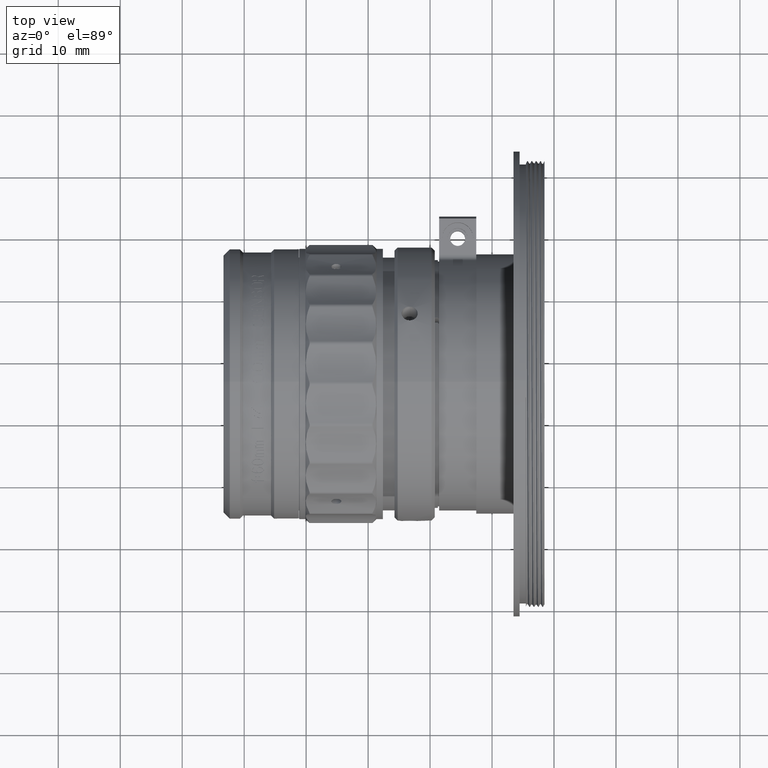
[diagram: clean part render]
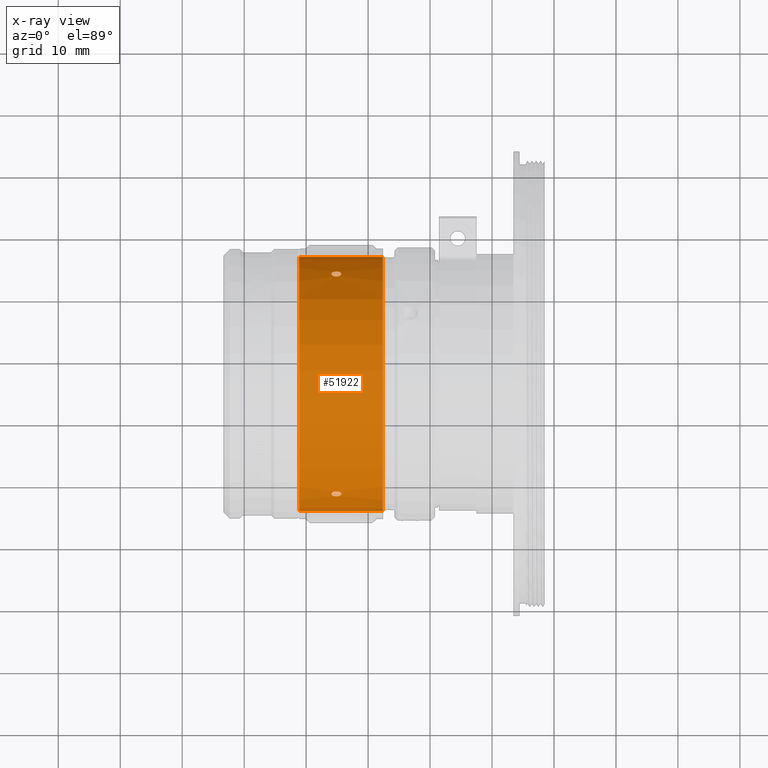
[diagram: x-ray — body ghosted, one internal face saturated and labeled with its STEP entity id]
A machine part, top view, then the same camera in x-ray: the body is ghosted and one INTERNAL B-rep face — a face not visible from any outside direction — is saturated and labeled: STEP entity #51922.
In plain terms, the highlighted cylindrical surface (partial cylindrical patch) has radius 20.5 mm, axis along (1, 0, 0).
Its self-contained STEP definition (entity closure, byte-faithful):
#1580 = DIRECTION ( 'NONE',  ( 0.0000000000000000000, -0.9998476951563911586, -0.01745240643728984339 ) ) ;
#1658 = B_SPLINE_CURVE_WITH_KNOTS ( 'NONE', 3,
 ( #39605, #29747, #54951, #65839, #65510, #2850, #66527, #8978, #19868, #45071, #45414, #60070, #19519, #39273 ),
 .UNSPECIFIED., .F., .F.,
 ( 4, 2, 2, 2, 2, 2, 4 ),
 ( 0.003751869314294635147, 0.004064479787118162497, 0.004377090259941688981, 0.005002311205588750621, 0.005314921678412278840, 0.005627532151235807058, 0.006252753096882871300 ),
 .UNSPECIFIED. ) ;
#2750 = CARTESIAN_POINT ( 'NONE',  ( 13.75000000000000000, 0.0000000000000000000, 0.0000000000000000000 ) ) ;
#2850 = CARTESIAN_POINT ( 'NONE',  ( 20.46501376015717710, -17.72462242106342245, 10.30097465700528581 ) ) ;
#4690 = VERTEX_POINT ( 'NONE', #42728 ) ;
#4890 = CARTESIAN_POINT ( 'NONE',  ( 13.75000000000000000, -20.49687775070601958, -0.3577743319644418052 ) ) ;
#5153 = CARTESIAN_POINT ( 'NONE',  ( 20.46501397072306361, 17.78321679351520501, 10.19948623042372660 ) ) ;
#5487 = CARTESIAN_POINT ( 'NONE',  ( 20.15286426723878321, 17.92178635977351320, 9.952948468779723612 ) ) ;
#6573 = DIRECTION ( 'NONE',  ( 0.0000000000000000000, -0.9998476951563911586, -0.01745240643728984339 ) ) ;
#8256 = VERTEX_POINT ( 'NONE', #33511 ) ;
#8482 = EDGE_CURVE ( 'NONE', #55888, #8256, #34516, .T. ) ;
#8978 = CARTESIAN_POINT ( 'NONE',  ( 20.54992695646923551, -17.98120942283124890, 9.845673086452510603 ) ) ;
#9820 = CIRCLE ( 'NONE', #40281, 20.50000000000000000 ) ;
#10451 = CARTESIAN_POINT ( 'NONE',  ( 18.94985448309763498, 17.46334756923716824, 10.73900251457552812 ) ) ;
#11146 = ORIENTED_EDGE ( 'NONE', *, *, #26553, .F. ) ;
#11252 = CARTESIAN_POINT ( 'NONE',  ( 19.74999999999891287, 17.14651393390148826, 11.23597169427380749 ) ) ;
#12302 = CARTESIAN_POINT ( 'NONE',  ( 19.54130188321091666, -17.52819849799529450, 10.63072233739907091 ) ) ;
#13062 = VERTEX_POINT ( 'NONE', #44575 ) ;
#14322 = AXIS2_PLACEMENT_3D ( 'NONE', #39008, #22020, #1580 ) ;
#14665 = EDGE_CURVE ( 'NONE', #36591, #63297, #25001, .T. ) ;
#15101 = B_SPLINE_CURVE_WITH_KNOTS ( 'NONE', 3,
 ( #58637, #22181, #48753, #26971, #42634, #33077, #43292, #63719, #37841, #32407, #17414, #53192, #12302, #53861 ),
 .UNSPECIFIED., .F., .F.,
 ( 4, 2, 2, 2, 2, 2, 4 ),
 ( 0.001250985531247280355, 0.001563596004128200816, 0.001876206477009121059, 0.002501427422770958510, 0.002814037895651880054, 0.003126648368532800731, 0.003751869314294635147 ),
 .UNSPECIFIED. ) ;
#15571 = CARTESIAN_POINT ( 'NONE',  ( 19.25900966258801716, 17.23365338733148633, 11.10210658563051922 ) ) ;
#16693 = CARTESIAN_POINT ( 'NONE',  ( 20.54992688544879087, 17.51720747285535040, 10.64934801638008999 ) ) ;
#17414 = CARTESIAN_POINT ( 'NONE',  ( 19.11086952596591360, -17.68595565878352716, 10.36640795010155713 ) ) ;
#18400 = DIRECTION ( 'NONE',  ( 0.0000000000000000000, -0.9998476951563911586, -0.01745240643728984339 ) ) ;
#18630 = CIRCLE ( 'NONE', #14322, 20.50000000000000000 ) ;
#19519 = CARTESIAN_POINT ( 'NONE',  ( 19.95869820483370560, -18.30389389038986891, 9.231330805975298759 ) ) ;
#19670 = CARTESIAN_POINT ( 'NONE',  ( 19.03498623984281224, 17.35432622891293875, 10.91327998330445403 ) ) ;
#19868 = CARTESIAN_POINT ( 'NONE',  ( 20.52904307239881021, -18.03075791548526396, 9.754545020359369545 ) ) ;
#22020 = DIRECTION ( 'NONE',  ( -1.000000000000000000, -0.0000000000000000000, -0.0000000000000000000 ) ) ;
#22181 = CARTESIAN_POINT ( 'NONE',  ( 19.64565089756152716, -18.30389389038957759, 9.231330805975868969 ) ) ;
#22925 = VERTEX_POINT ( 'NONE', #59079 ) ;
#23687 = ORIENTED_EDGE ( 'NONE', *, *, #8482, .F. ) ;
#25001 = LINE ( 'NONE', #51231, #31266 ) ;
#25780 = EDGE_LOOP ( 'NONE', ( #56635, #60228, #31418, #23687 ) ) ;
#25790 = CARTESIAN_POINT ( 'NONE',  ( 19.33239095497087234, 17.92924513125285202, 9.940519828789426526 ) ) ;
#25927 = CARTESIAN_POINT ( 'NONE',  ( 20.44861809837974320, 17.36082798548495632, 10.90234062972777807 ) ) ;
#26268 = CARTESIAN_POINT ( 'NONE',  ( 20.24099051590575016, 17.89328841113655244, 10.00428955790103913 ) ) ;
#26553 = EDGE_CURVE ( 'NONE', #22925, #44754, #15101, .T. ) ;
#26971 = CARTESIAN_POINT ( 'NONE',  ( 19.34713573276122389, -18.25822178402006202, 9.321424077526136998 ) ) ;
#27159 = CARTESIAN_POINT ( 'NONE',  ( 13.75000000000000000, -20.49687775070601958, -0.3577743319644418052 ) ) ;
#27943 = FACE_BOUND ( 'NONE', #62149, .T. ) ;
#28619 = FACE_OUTER_BOUND ( 'NONE', #25780, .T. ) ;
#29747 = CARTESIAN_POINT ( 'NONE',  ( 19.85434905837785280, -17.52819849799562846, 10.63072233739851846 ) ) ;
#30215 = EDGE_LOOP ( 'NONE', ( #55304, #40509 ) ) ;
#30896 = CARTESIAN_POINT ( 'NONE',  ( 19.74999999999891287, 17.14651393390148826, 11.23597169427380749 ) ) ;
#31230 = CARTESIAN_POINT ( 'NONE',  ( 19.11086933086252415, 17.82055033993814419, 10.13328312752130422 ) ) ;
#31266 = VECTOR ( 'NONE', #45443, 1000.000000000000000 ) ;
#31373 = CARTESIAN_POINT ( 'NONE',  ( 19.85434910243847639, 17.97057485376323527, 9.864504013141889516 ) ) ;
#31418 = ORIENTED_EDGE ( 'NONE', *, *, #53334, .F. ) ;
#32351 = CARTESIAN_POINT ( 'NONE',  ( 20.38913047403408640, 17.31339943238324253, 10.97732396566384416 ) ) ;
#32407 = CARTESIAN_POINT ( 'NONE',  ( 19.05138190162026390, -17.73073843900693447, 10.28981505935519536 ) ) ;
#32790 = CARTESIAN_POINT ( 'NONE',  ( 13.75000000000000000, 0.0000000000000000000, 0.0000000000000000000 ) ) ;
#33077 = CARTESIAN_POINT ( 'NONE',  ( 19.03498602927693639, -18.12834067439703389, 9.572647663147668240 ) ) ;
#33389 = FACE_BOUND ( 'NONE', #30215, .T. ) ;
#33511 = CARTESIAN_POINT ( 'NONE',  ( 27.25000000000000000, -20.49687775070601958, -0.3577743319644418052 ) ) ;
#33630 = CARTESIAN_POINT ( 'NONE',  ( 19.75000000000108713, -17.52819849799009688, 10.63072233740764538 ) ) ;
#33771 = EDGE_CURVE ( 'NONE', #4690, #13062, #66495, .T. ) ;
#34516 = LINE ( 'NONE', #4890, #65334 ) ;
#35336 = CARTESIAN_POINT ( 'NONE',  ( 19.54081150109406906, 17.15792214172356367, 11.21861476847270644 ) ) ;
#36010 = CARTESIAN_POINT ( 'NONE',  ( 18.97095692760118979, 17.67934535316537037, 10.37786719150724934 ) ) ;
#36591 = VERTEX_POINT ( 'NONE', #41797 ) ;
#36808 = CARTESIAN_POINT ( 'NONE',  ( 20.16760887450877604, 17.19422874551389668, 11.16379251224635105 ) ) ;
#37450 = CARTESIAN_POINT ( 'NONE',  ( 19.95918858559526043, 17.96060541889125517, 9.882725460845435350 ) ) ;
#37841 = CARTESIAN_POINT ( 'NONE',  ( 18.97095705131998500, -17.82716908696158953, 10.12182897964057204 ) ) ;
#38102 = EDGE_CURVE ( 'NONE', #44754, #22925, #1658, .T. ) ;
#39008 = CARTESIAN_POINT ( 'NONE',  ( 27.25000000000000000, 0.0000000000000000000, 0.0000000000000000000 ) ) ;
#39273 = CARTESIAN_POINT ( 'NONE',  ( 19.74999999999891287, -18.30389389039438086, 9.231330805966345920 ) ) ;
#39605 = CARTESIAN_POINT ( 'NONE',  ( 19.75000000000108713, -17.52819849799009688, 10.63072233740764538 ) ) ;
#40281 = AXIS2_PLACEMENT_3D ( 'NONE', #32790, #53567, #6573 ) ;
#40509 = ORIENTED_EDGE ( 'NONE', *, *, #33771, .F. ) ;
#41785 = CARTESIAN_POINT ( 'NONE',  ( 18.95007304353077160, 17.62664672047218772, 10.46721052738872970 ) ) ;
#41797 = CARTESIAN_POINT ( 'NONE',  ( 13.75000000000000000, 20.49687775070601958, 0.3577743319644393072 ) ) ;
#42634 = CARTESIAN_POINT ( 'NONE',  ( 19.25900948409425695, -18.23153297373391624, 9.373728455107631419 ) ) ;
#42728 = CARTESIAN_POINT ( 'NONE',  ( 19.75000000000108713, 17.97057485376837249, 9.864504013132536997 ) ) ;
#43292 = CARTESIAN_POINT ( 'NONE',  ( 18.94985434216373577, -18.03192246403239452, 9.754201942510491108 ) ) ;
#44282 = DIRECTION ( 'NONE',  ( 1.000000000000000000, 0.0000000000000000000, 0.0000000000000000000 ) ) ;
#44575 = CARTESIAN_POINT ( 'NONE',  ( 19.74999999999891287, 17.14651393390148826, 11.23597169427380749 ) ) ;
#44754 = VERTEX_POINT ( 'NONE', #33630 ) ;
#45071 = CARTESIAN_POINT ( 'NONE',  ( 20.44861828002423820, -18.12211779815857682, 9.583748017905977079 ) ) ;
#45078 = DIRECTION ( 'NONE',  ( 1.000000000000000000, 0.0000000000000000000, 0.0000000000000000000 ) ) ;
#45414 = CARTESIAN_POINT ( 'NONE',  ( 20.38913066913747230, -18.16334102326077371, 9.505181967406507226 ) ) ;
#45443 = DIRECTION ( 'NONE',  ( 1.000000000000000000, 0.0000000000000000000, 0.0000000000000000000 ) ) ;
#45562 = CARTESIAN_POINT ( 'NONE',  ( 19.34713589140619305, 17.20170089654196133, 11.15137192504800367 ) ) ;
#45784 = AXIS2_PLACEMENT_3D ( 'NONE', #2750, #44282, #18400 ) ;
#46576 = CARTESIAN_POINT ( 'NONE',  ( 19.75000000000108713, 17.97057485376837249, 9.864504013132536997 ) ) ;
#47374 = CARTESIAN_POINT ( 'NONE',  ( 19.95869811678907624, 17.14651393390697365, 11.23597169426541598 ) ) ;
#48082 = ORIENTED_EDGE ( 'NONE', *, *, #38102, .F. ) ;
#48753 = CARTESIAN_POINT ( 'NONE',  ( 19.54081141440474312, -18.29456644798200671, 9.249889081925244838 ) ) ;
#49403 = CYLINDRICAL_SURFACE ( 'NONE', #45784, 20.50000000000000000 ) ;
#51014 = CARTESIAN_POINT ( 'NONE',  ( 19.54130179516628374, 17.97057485376354435, 9.864504013141321082 ) ) ;
#51231 = CARTESIAN_POINT ( 'NONE',  ( 13.75000000000000000, 20.49687775070601958, 0.3577743319644393072 ) ) ;
#51350 = CARTESIAN_POINT ( 'NONE',  ( 19.05138171997576890, 17.77661031129052560, 10.21036264789706394 ) ) ;
#51922 = ADVANCED_FACE ( 'NONE', ( #27943, #33389, #28619 ), #49403, .F. ) ;
#52151 = CARTESIAN_POINT ( 'NONE',  ( 19.75000000000108713, 17.97057485376837249, 9.864504013132536997 ) ) ;
#52805 = CARTESIAN_POINT ( 'NONE',  ( 20.55014565783626779, 17.68052116554524389, 10.37756496481030588 ) ) ;
#52868 = B_SPLINE_CURVE_WITH_KNOTS ( 'NONE', 3,
 ( #30896, #56800, #35336, #45562, #15571, #19670, #10451, #41785, #36010, #51350, #31230, #25790, #51014, #46576 ),
 .UNSPECIFIED., .F., .F.,
 ( 4, 2, 2, 2, 2, 2, 4 ),
 ( 0.003751869314294627774, 0.004064479787118159028, 0.004377090259941690716, 0.005002311205588742815, 0.005314921678412271033, 0.005627532151235799251, 0.006252753096882860892 ),
 .UNSPECIFIED. ) ;
#53192 = CARTESIAN_POINT ( 'NONE',  ( 19.33239112549122396, -17.57336522590331285, 10.55692190207713743 ) ) ;
#53334 = EDGE_CURVE ( 'NONE', #8256, #63297, #18630, .T. ) ;
#53567 = DIRECTION ( 'NONE',  ( 1.000000000000000000, 0.0000000000000000000, 0.0000000000000000000 ) ) ;
#53861 = CARTESIAN_POINT ( 'NONE',  ( 19.75000000000108713, -17.52819849799009688, 10.63072233740764538 ) ) ;
#54951 = CARTESIAN_POINT ( 'NONE',  ( 19.95918849890593805, -17.53899400826544763, 10.61297784426550450 ) ) ;
#55304 = ORIENTED_EDGE ( 'NONE', *, *, #65388, .F. ) ;
#55888 = VERTEX_POINT ( 'NONE', #27159 ) ;
#56635 = ORIENTED_EDGE ( 'NONE', *, *, #62303, .F. ) ;
#56800 = CARTESIAN_POINT ( 'NONE',  ( 19.64565094162215075, 17.14651393390733602, 11.23597169426488485 ) ) ;
#57930 = CARTESIAN_POINT ( 'NONE',  ( 20.52904294868001855, 17.46306252012941940, 10.73782226367440806 ) ) ;
#58637 = CARTESIAN_POINT ( 'NONE',  ( 19.74999999999891287, -18.30389389039438086, 9.231330805966345920 ) ) ;
#59079 = CARTESIAN_POINT ( 'NONE',  ( 19.74999999999891287, -18.30389389039438086, 9.231330805966345920 ) ) ;
#60070 = CARTESIAN_POINT ( 'NONE',  ( 20.16760904502912766, -18.26524225853698624, 9.308742701356862881 ) ) ;
#60228 = ORIENTED_EDGE ( 'NONE', *, *, #14665, .T. ) ;
#62149 = EDGE_LOOP ( 'NONE', ( #11146, #48082 ) ) ;
#62303 = EDGE_CURVE ( 'NONE', #36591, #55888, #9820, .T. ) ;
#63297 = VERTEX_POINT ( 'NONE', #64451 ) ;
#63719 = CARTESIAN_POINT ( 'NONE',  ( 18.95007311455121979, -17.87819334934356874, 10.03151899686809934 ) ) ;
#64451 = CARTESIAN_POINT ( 'NONE',  ( 27.25000000000000000, 20.49687775070601958, 0.3577743319644393072 ) ) ;
#65334 = VECTOR ( 'NONE', #45078, 1000.000000000000000 ) ;
#65388 = EDGE_CURVE ( 'NONE', #13062, #4690, #52868, .T. ) ;
#65510 = CARTESIAN_POINT ( 'NONE',  ( 20.24099033741198639, -17.61061304350181800, 10.49389765270398911 ) ) ;
#65839 = CARTESIAN_POINT ( 'NONE',  ( 20.15286410859379984, -17.58039935285690447, 10.54424810685475400 ) ) ;
#66495 = B_SPLINE_CURVE_WITH_KNOTS ( 'NONE', 3,
 ( #52151, #31373, #37450, #5487, #26268, #5153, #52805, #16693, #57930, #25927, #32351, #36808, #47374, #11252 ),
 .UNSPECIFIED., .F., .F.,
 ( 4, 2, 2, 2, 2, 2, 4 ),
 ( 0.001250985531247276452, 0.001563596004128197129, 0.001876206477009117590, 0.002501427422770958510, 0.002814037895651873983, 0.003126648368532789456, 0.003751869314294628208 ),
 .UNSPECIFIED. ) ;
#66527 = CARTESIAN_POINT ( 'NONE',  ( 20.55014551690236857, -17.82749515258755579, 10.12299856349434712 ) ) ;